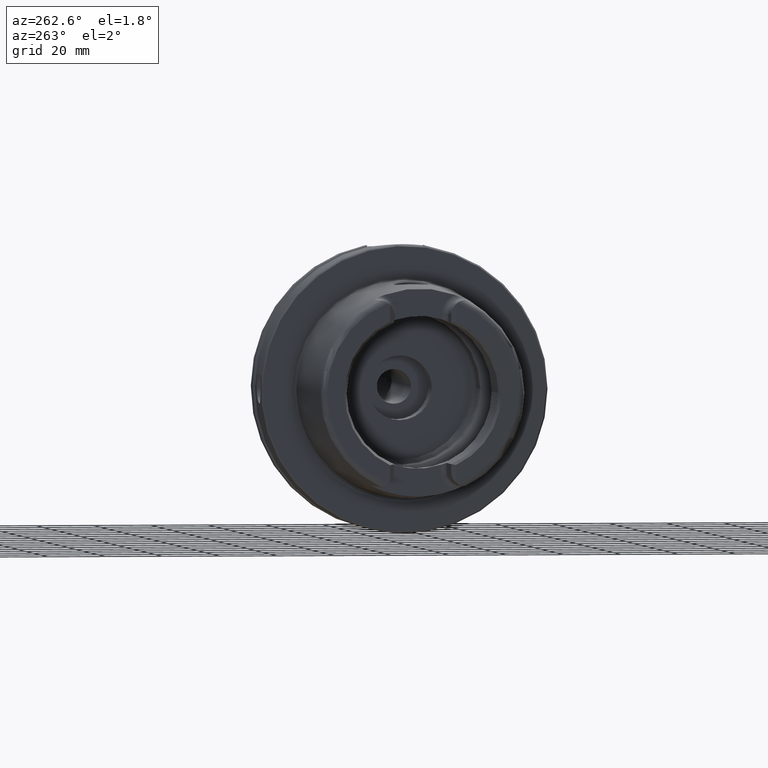
[diagram: clean part render]
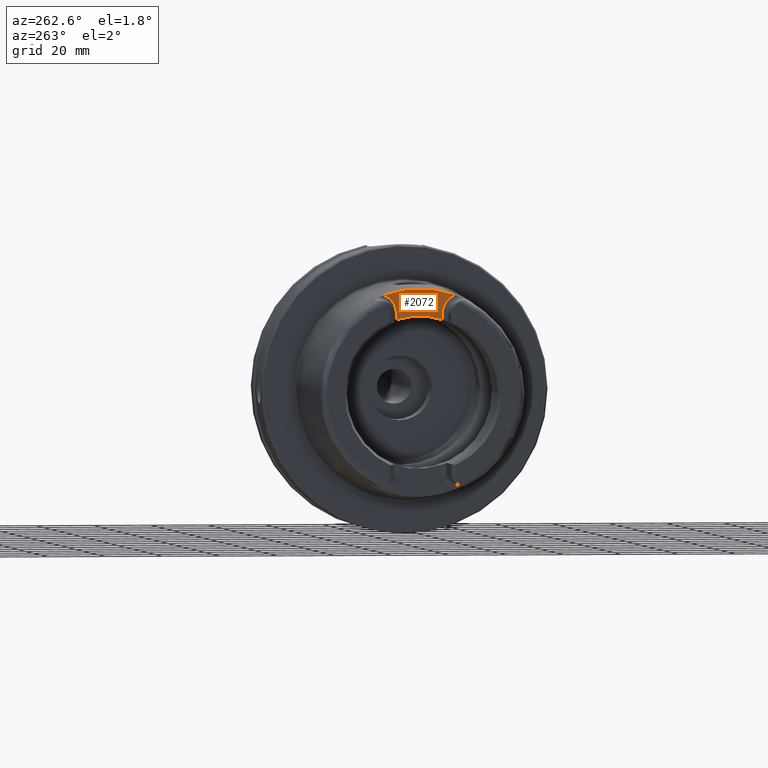
[diagram: same view with one face highlighted and labeled with its STEP entity id]
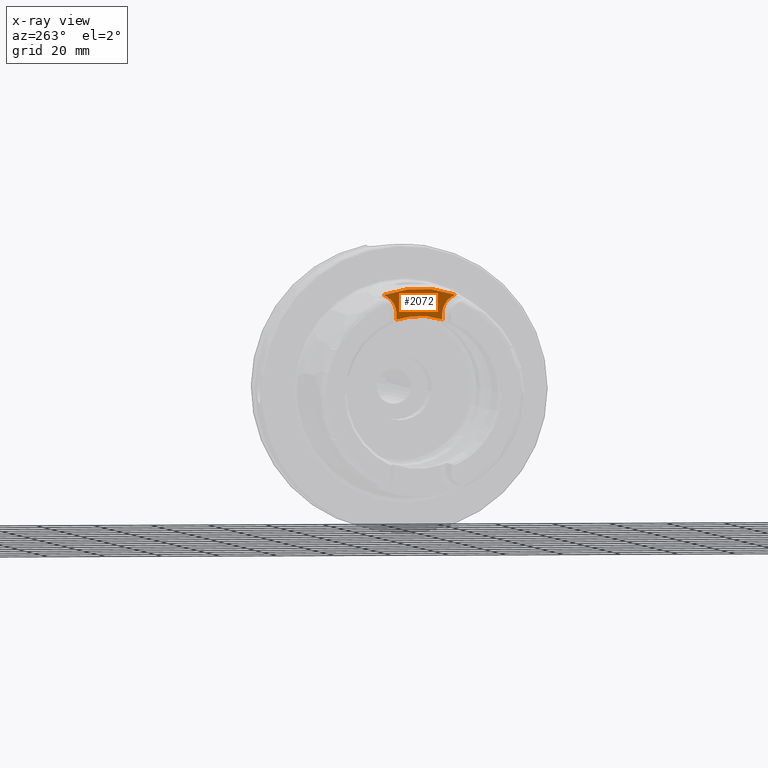
[diagram: x-ray of the same camera — body ghosted, the highlighted face saturated]
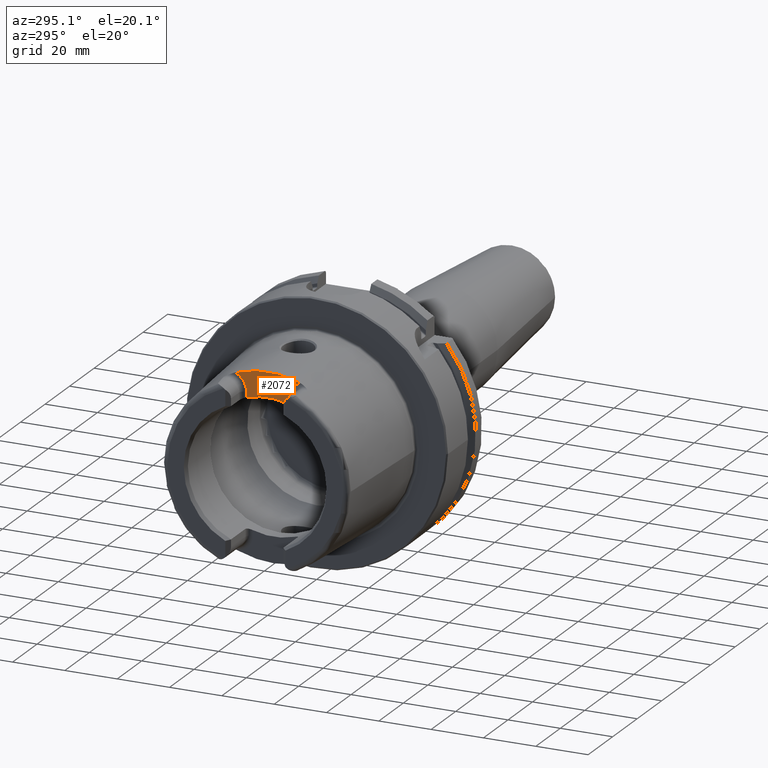
[diagram: same view with one face highlighted and labeled with its STEP entity id]
A machine part, auxiliary view. The second image highlights one B-rep face of the part: STEP entity #2072.
The next image is the same camera in x-ray: the body ghosted, the highlighted face saturated — about 0% of this face is hidden behind the body in this view.
A second angle (auxiliary view) of the same face is appended — the face is thin or edge-on in the first view.
In plain terms, the highlighted planar face has unit normal (-1, 0, 0).
Its self-contained STEP definition (entity closure, byte-faithful):
#127=PLANE('',#2320);
#297=FACE_OUTER_BOUND('',#426,.T.);
#426=EDGE_LOOP('',(#1814,#1815,#1816,#1817,#1818,#1819));
#550=LINE('',#4341,#658);
#551=LINE('',#4370,#659);
#658=VECTOR('',#2808,10.);
#659=VECTOR('',#2821,10.);
#717=CIRCLE('',#2207,36.003493987976);
#760=CIRCLE('',#2293,6.88);
#762=CIRCLE('',#2296,6.88);
#774=CIRCLE('',#2321,26.5);
#890=VERTEX_POINT('',#3519);
#891=VERTEX_POINT('',#3536);
#982=VERTEX_POINT('',#4338);
#983=VERTEX_POINT('',#4340);
#984=VERTEX_POINT('',#4355);
#985=VERTEX_POINT('',#4359);
#1121=EDGE_CURVE('',#890,#891,#717,.T.);
#1259=EDGE_CURVE('',#982,#983,#550,.T.);
#1261=EDGE_CURVE('',#891,#982,#760,.T.);
#1263=EDGE_CURVE('',#984,#890,#762,.T.);
#1265=EDGE_CURVE('',#985,#984,#551,.T.);
#1286=EDGE_CURVE('',#983,#985,#774,.T.);
#1814=ORIENTED_EDGE('',*,*,#1261,.F.);
#1815=ORIENTED_EDGE('',*,*,#1121,.F.);
#1816=ORIENTED_EDGE('',*,*,#1263,.F.);
#1817=ORIENTED_EDGE('',*,*,#1265,.F.);
#1818=ORIENTED_EDGE('',*,*,#1286,.F.);
#1819=ORIENTED_EDGE('',*,*,#1259,.F.);
#2072=ADVANCED_FACE('',(#297),#127,.T.);
#2207=AXIS2_PLACEMENT_3D('',#3537,#2589,#2590);
#2293=AXIS2_PLACEMENT_3D('',#4353,#2811,#2812);
#2296=AXIS2_PLACEMENT_3D('',#4357,#2817,#2818);
#2320=AXIS2_PLACEMENT_3D('',#4428,#2873,#2874);
#2321=AXIS2_PLACEMENT_3D('',#4429,#2875,#2876);
#2589=DIRECTION('center_axis',(1.,0.,0.));
#2590=DIRECTION('ref_axis',(0.,1.,0.));
#2808=DIRECTION('',(0.,0.,-1.));
#2811=DIRECTION('center_axis',(-1.,0.,0.));
#2812=DIRECTION('ref_axis',(0.,0.564947834751706,0.82512662301574));
#2817=DIRECTION('center_axis',(-1.,0.,0.));
#2818=DIRECTION('ref_axis',(0.,-0.564947834751705,0.825126623015741));
#2821=DIRECTION('',(0.,0.,1.));
#2873=DIRECTION('center_axis',(-1.,0.,0.));
#2874=DIRECTION('ref_axis',(0.,0.,1.));
#2875=DIRECTION('center_axis',(-1.,0.,0.));
#2876=DIRECTION('ref_axis',(0.,1.,0.));
#3519=CARTESIAN_POINT('',(-40.,12.4227760464511,33.7923987701664));
#3536=CARTESIAN_POINT('',(-40.,-12.4227760464511,33.7923987701664));
#3537=CARTESIAN_POINT('Origin',(-40.,0.,0.));
#4338=CARTESIAN_POINT('',(-40.,-8.01,27.37));
#4340=CARTESIAN_POINT('',(-40.,-8.01,25.2604414054862));
#4341=CARTESIAN_POINT('',(-40.,-8.01,23.5));
#4353=CARTESIAN_POINT('Origin',(-40.,-14.89,27.37));
#4355=CARTESIAN_POINT('',(-40.,8.01,27.37));
#4357=CARTESIAN_POINT('Origin',(-40.,14.89,27.37));
#4359=CARTESIAN_POINT('',(-40.,8.01,25.2604414054862));
#4370=CARTESIAN_POINT('',(-40.,8.01,28.185));
#4428=CARTESIAN_POINT('Origin',(-40.,0.,29.));
#4429=CARTESIAN_POINT('Origin',(-40.,0.,0.));